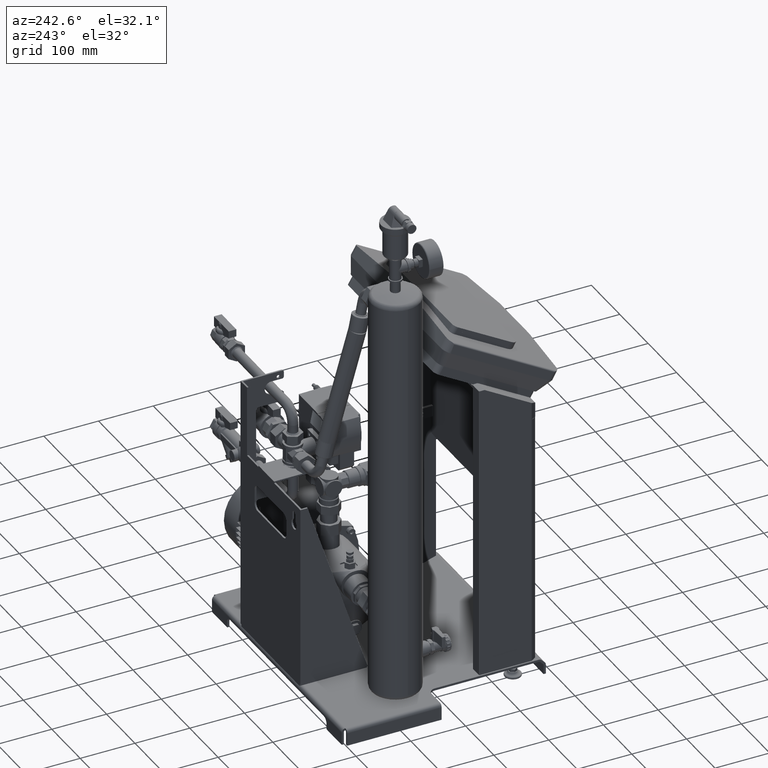
[diagram: clean part render]
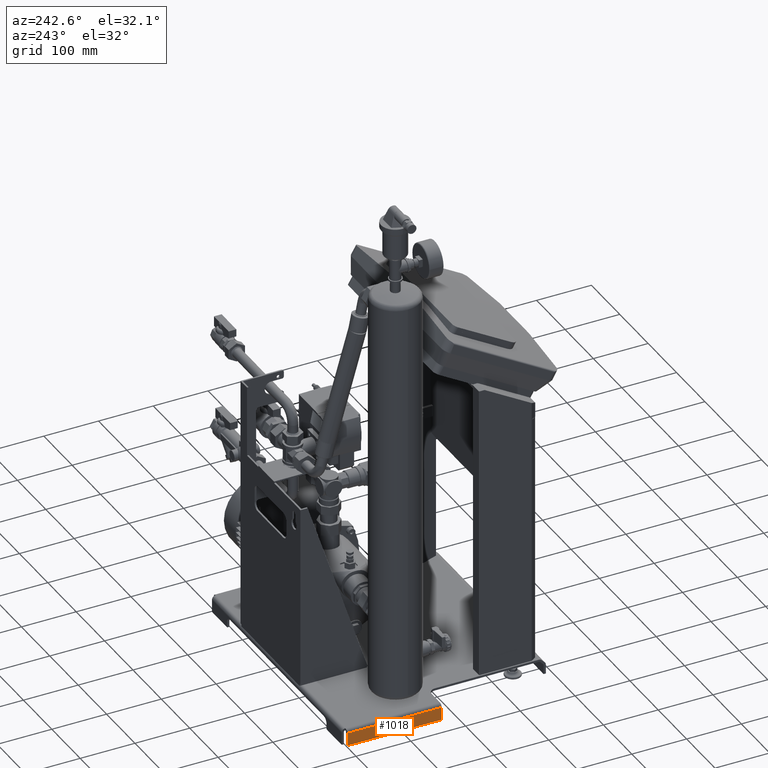
[diagram: same view with one face highlighted and labeled with its STEP entity id]
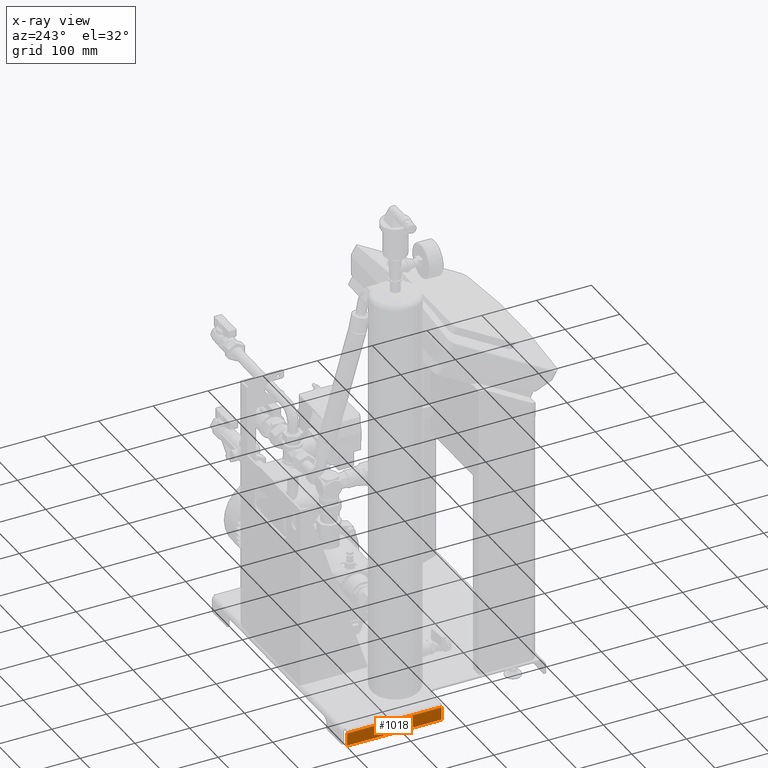
[diagram: x-ray of the same camera — body ghosted, the highlighted face saturated]
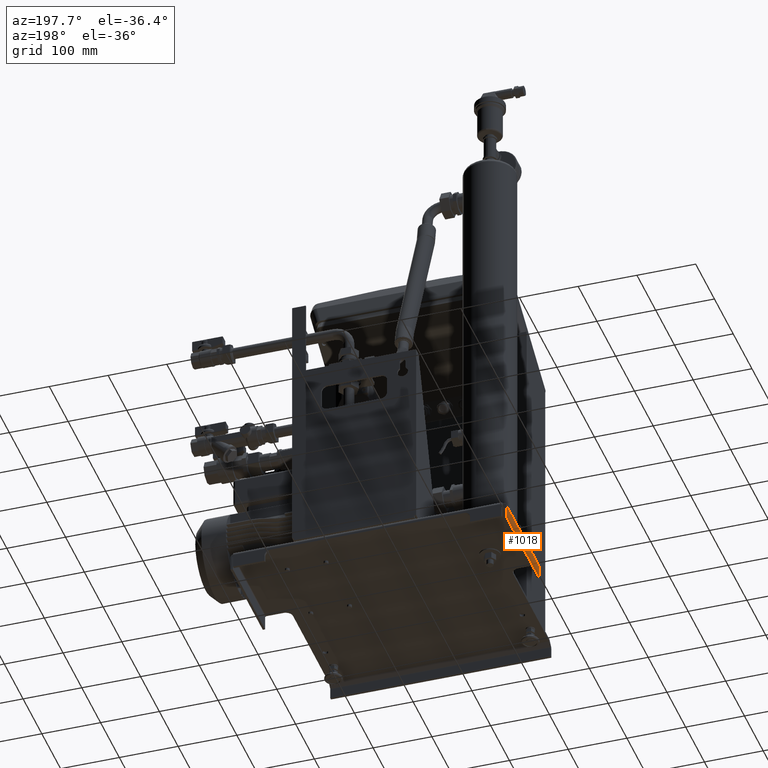
[diagram: same view with one face highlighted and labeled with its STEP entity id]
A machine part, auxiliary view. The second image highlights one B-rep face of the part: STEP entity #1018.
The next image is the same camera in x-ray: the body ghosted, the highlighted face saturated — about 0% of this face is hidden behind the body in this view.
A second angle (auxiliary view) of the same face is appended — the face is thin or edge-on in the first view.
In plain terms, the highlighted planar face has unit normal (-1, 0, -0).
Its self-contained STEP definition (entity closure, byte-faithful):
#446=CARTESIAN_POINT('',(-190.3006281446701,111.25000000000023,22.249999999990166));
#447=VERTEX_POINT('',#446);
#830=CARTESIAN_POINT('',(-190.3006281446701,111.25000000000023,-1.249999999999833));
#831=VERTEX_POINT('',#830);
#838=CARTESIAN_POINT('',(-190.30062814469662,111.25000000000023,22.249999999990166));
#839=DIRECTION('',(2.256805E-012,0.0,-1.0));
#840=VECTOR('',#839,23.499999999989999);
#841=LINE('',#838,#840);
#842=EDGE_CURVE('',#447,#831,#841,.T.);
#968=CARTESIAN_POINT('',(-190.30062814467027,-61.249657658999695,22.249999999990166));
#969=VERTEX_POINT('',#968);
#970=CARTESIAN_POINT('',(-190.30062814467027,111.25000000000023,22.249999999990166));
#971=DIRECTION('',(0.0,-1.0,0.0));
#972=VECTOR('',#971,172.49965765899989);
#973=LINE('',#970,#972);
#974=EDGE_CURVE('',#447,#969,#973,.T.);
#995=CARTESIAN_POINT('',(-190.30062814467027,177.25034234100031,22.249999999990166));
#996=DIRECTION('',(-1.0,0.0,-2.257145E-012));
#997=DIRECTION('',(2.257145E-012,0.0,-1.0));
#998=AXIS2_PLACEMENT_3D('',#995,#996,#997);
#999=PLANE('',#998);
#1000=CARTESIAN_POINT('',(-190.30062814467027,-61.249657658999695,-1.249999999999833));
#1001=VERTEX_POINT('',#1000);
#1002=CARTESIAN_POINT('',(-190.30062814467027,111.25000000000023,-1.249999999999833));
#1003=DIRECTION('',(0.0,-1.0,0.0));
#1004=VECTOR('',#1003,172.49965765899989);
#1005=LINE('',#1002,#1004);
#1006=EDGE_CURVE('',#831,#1001,#1005,.T.);
#1007=ORIENTED_EDGE('',*,*,#1006,.T.);
#1008=CARTESIAN_POINT('',(-190.30062814469679,-61.249657658999695,22.249999999990166));
#1009=DIRECTION('',(2.256805E-012,0.0,-1.0));
#1010=VECTOR('',#1009,23.499999999989999);
#1011=LINE('',#1008,#1010);
#1012=EDGE_CURVE('',#969,#1001,#1011,.T.);
#1013=ORIENTED_EDGE('',*,*,#1012,.F.);
#1014=ORIENTED_EDGE('',*,*,#974,.F.);
#1015=ORIENTED_EDGE('',*,*,#842,.T.);
#1016=EDGE_LOOP('',(#1007,#1013,#1014,#1015));
#1017=FACE_OUTER_BOUND('',#1016,.T.);
#1018=ADVANCED_FACE('',(#1017),#999,.T.);